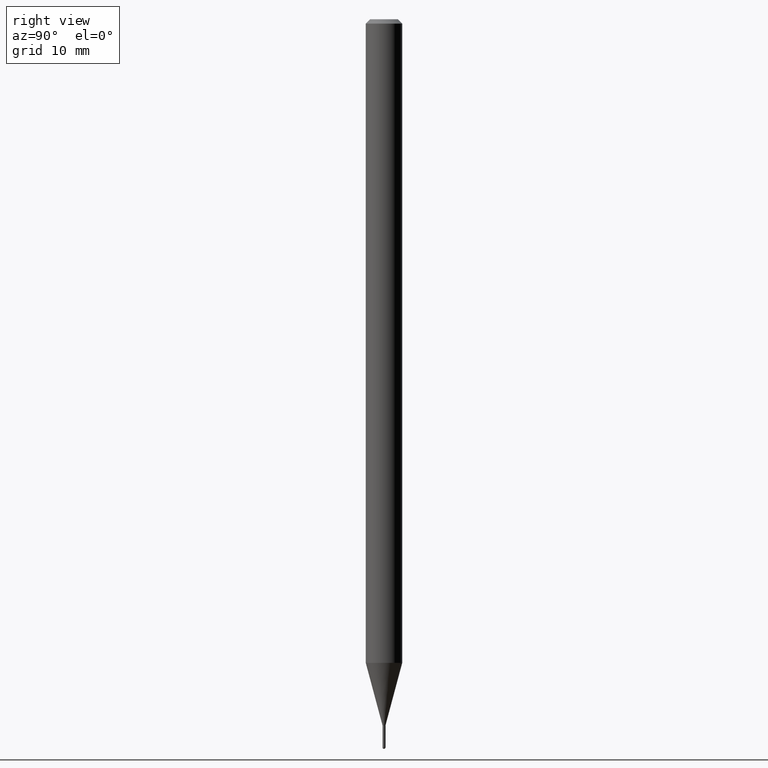
[diagram: clean part render]
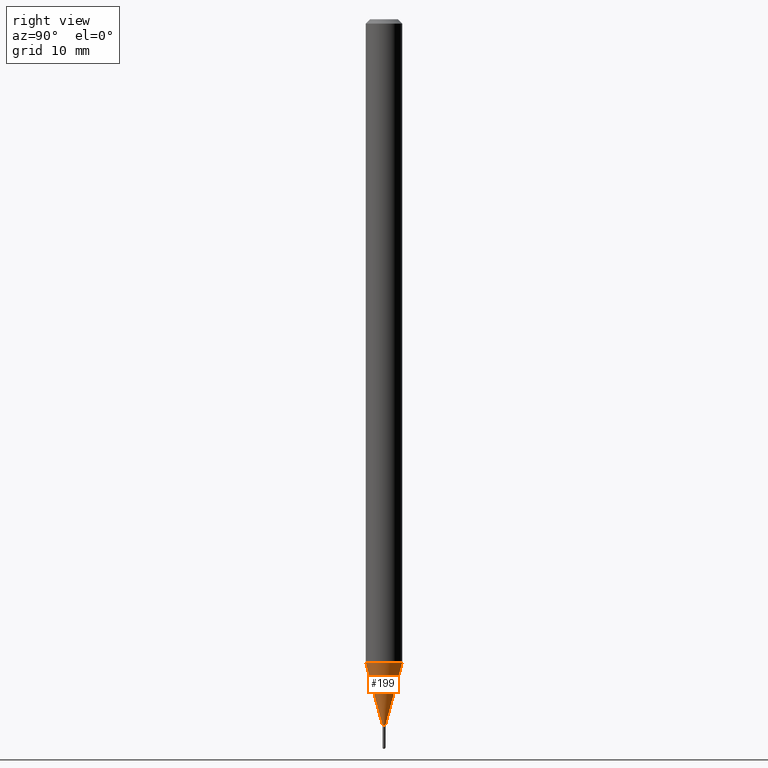
[diagram: same view with one face highlighted and labeled with its STEP entity id]
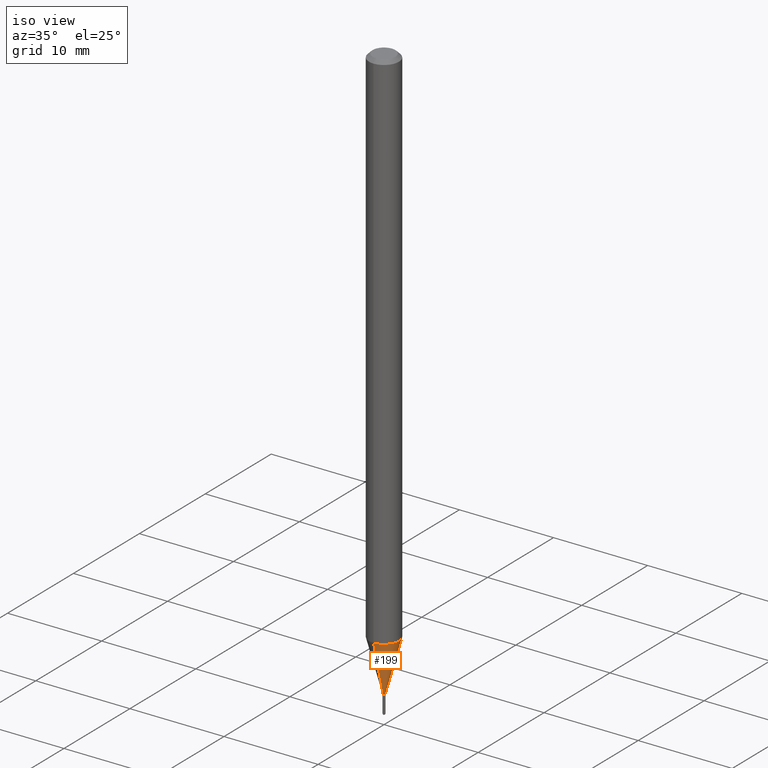
[diagram: same view with one face highlighted and labeled with its STEP entity id]
A machine part, right view. The second image highlights one B-rep face of the part: STEP entity #199.
A second angle (iso view) of the same face is appended — the face is thin or edge-on in the first view.
In plain terms, the highlighted conical surface has half-angle 15 deg.
Its self-contained STEP definition (entity closure, byte-faithful):
#5 = CARTESIAN_POINT ( 'NONE',  ( 4.440892098501163573E-16, 0.06249999999999229089, -2.205407078564797452 ) ) ;
#6 = CARTESIAN_POINT ( 'NONE',  ( -4.364351673553377310E-16, -0.06250000000000770217, -2.205407078564797008 ) ) ;
#24 = DIRECTION ( 'NONE',  ( 1.839019923739647253E-15, 0.2588190451025315642, 0.9659258262890653146 ) ) ;
#31 = CARTESIAN_POINT ( 'NONE',  ( 5.919411717925942744E-29, -8.447412601250929931E-15, -2.419999999999999929 ) ) ;
#37 = CONICAL_SURFACE ( 'NONE', #313, 0.005000000000000191791, 0.2617993877991571794 ) ;
#53 = LINE ( 'NONE', #266, #201 ) ;
#66 = VERTEX_POINT ( 'NONE', #5 ) ;
#98 = EDGE_CURVE ( 'NONE', #287, #66, #149, .T. ) ;
#128 = VERTEX_POINT ( 'NONE', #214 ) ;
#129 = AXIS2_PLACEMENT_3D ( 'NONE', #370, #373, #147 ) ;
#134 = EDGE_CURVE ( 'NONE', #136, #66, #53, .T. ) ;
#136 = VERTEX_POINT ( 'NONE', #496 ) ;
#147 = DIRECTION ( 'NONE',  ( -6.982962677686265922E-15, -1.000000000000000000, 4.370956789862821150E-15 ) ) ;
#149 = CIRCLE ( 'NONE', #129, 0.06250000000000000000 ) ;
#161 = AXIS2_PLACEMENT_3D ( 'NONE', #31, #508, #228 ) ;
#175 = DIRECTION ( 'NONE',  ( -1.807323732225376682E-15, -0.2588190451025248473, 0.9659258262890670910 ) ) ;
#179 = FACE_OUTER_BOUND ( 'NONE', #275, .T. ) ;
#199 = ADVANCED_FACE ( 'NONE', ( #179 ), #37, .T. ) ;
#201 = VECTOR ( 'NONE', #24, 39.37007874015748854 ) ;
#205 = ORIENTED_EDGE ( 'NONE', *, *, #309, .T. ) ;
#206 = CARTESIAN_POINT ( 'NONE',  ( -3.491481338837347677E-17, -0.005000000000008639894, -2.419999999999999929 ) ) ;
#214 = CARTESIAN_POINT ( 'NONE',  ( -3.491481338837347677E-17, -0.005000000000008639894, -2.419999999999999929 ) ) ;
#228 = DIRECTION ( 'NONE',  ( -6.982962677686266711E-15, -1.000000000000000000, 0.000000000000000000 ) ) ;
#243 = CIRCLE ( 'NONE', #161, 0.005000000000000191791 ) ;
#255 = ORIENTED_EDGE ( 'NONE', *, *, #366, .F. ) ;
#263 = CARTESIAN_POINT ( 'NONE',  ( 5.919411717925942744E-29, -8.447412601250929931E-15, -2.419999999999999929 ) ) ;
#266 = CARTESIAN_POINT ( 'NONE',  ( 3.552713678806556127E-17, 0.004999999999991744555, -2.419999999999999929 ) ) ;
#275 = EDGE_LOOP ( 'NONE', ( #205, #489, #361, #255 ) ) ;
#287 = VERTEX_POINT ( 'NONE', #6 ) ;
#309 = EDGE_CURVE ( 'NONE', #128, #136, #243, .T. ) ;
#313 = AXIS2_PLACEMENT_3D ( 'NONE', #263, #447, #414 ) ;
#357 = VECTOR ( 'NONE', #175, 39.37007874015748143 ) ;
#361 = ORIENTED_EDGE ( 'NONE', *, *, #98, .F. ) ;
#366 = EDGE_CURVE ( 'NONE', #128, #287, #437, .T. ) ;
#370 = CARTESIAN_POINT ( 'NONE',  ( 5.394509299030280483E-29, -7.698340308411679369E-15, -2.205407078564797008 ) ) ;
#373 = DIRECTION ( 'NONE',  ( -2.446037899969398006E-29, 3.490666364153276782E-15, 1.000000000000000000 ) ) ;
#414 = DIRECTION ( 'NONE',  ( -6.982962677686266711E-15, -1.000000000000000000, 0.000000000000000000 ) ) ;
#437 = LINE ( 'NONE', #206, #357 ) ;
#447 = DIRECTION ( 'NONE',  ( -2.446037899969398006E-29, 3.490666364153276782E-15, 1.000000000000000000 ) ) ;
#489 = ORIENTED_EDGE ( 'NONE', *, *, #134, .T. ) ;
#496 = CARTESIAN_POINT ( 'NONE',  ( 2.398081733190911688E-16, 0.004999999999991744555, -2.419999999999999929 ) ) ;
#508 = DIRECTION ( 'NONE',  ( -2.446037899969398006E-29, 3.490666364153276782E-15, 1.000000000000000000 ) ) ;